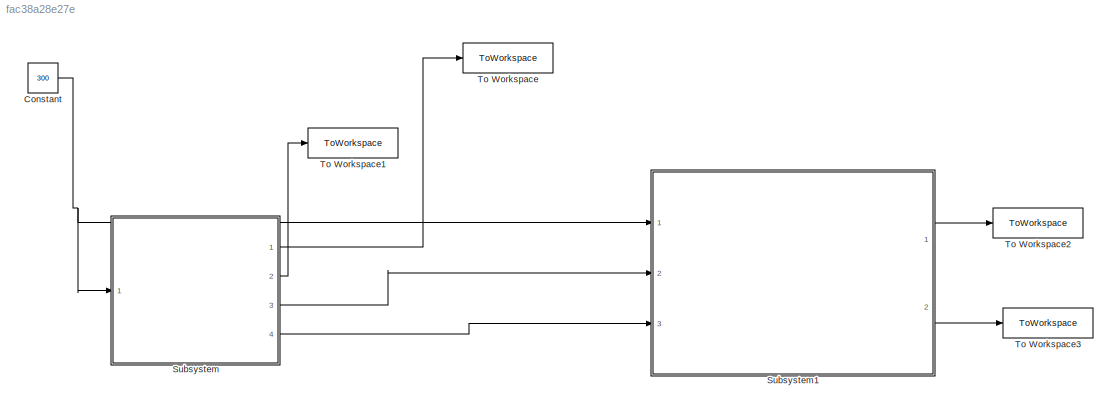
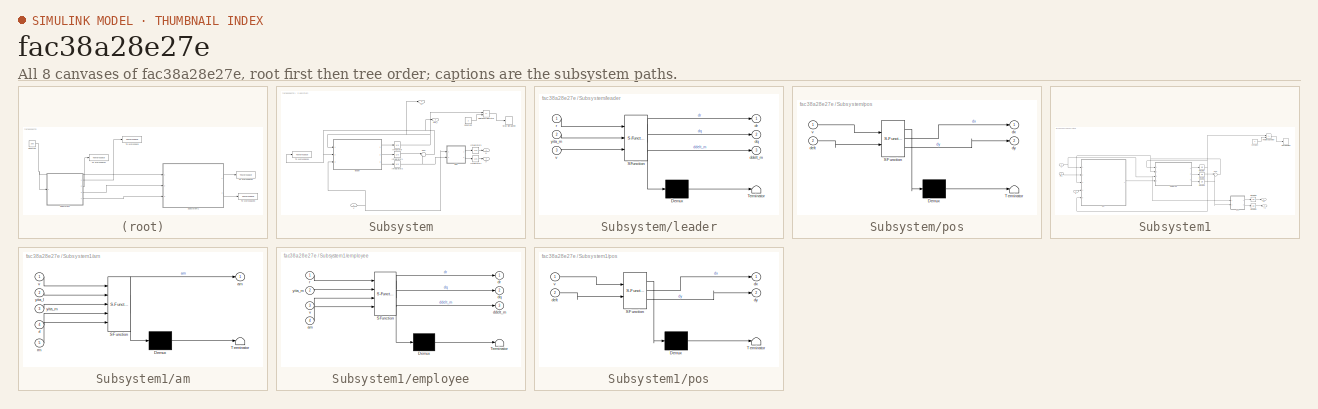
[diagram: thumbnail index - all 8 canvases of the model, root first then tree order]
MODEL slx_fac38a28e27e
KIND model
CONFIG AbsTol = auto
CONFIG EnableMultiTasking = off
CONFIG FixedStep = auto
CONFIG MaxStep = auto
CONFIG MinStep = auto
CONFIG RelTol = 1e-3
CONFIG SampleTimeConstraint = Unconstrained
CONFIG SolverName = VariableStepAuto
CONFIG StartTime = 0.0
CONFIG StopTime = 40
BLOCK [Constant] Constant
  Value = 300
BLOCK [SubSystem] Subsystem
  Ports = [1, 4]
  RequestExecContextInheritance = off
BLOCK [Constant] Subsystem/Constant
  Value = 2
BLOCK [Integrator] Subsystem/Integrator
  InitialCondition = sqrt(9093^2 + 5250^2)
  Ports = [1, 1]
BLOCK [Integrator] Subsystem/Integrator1
  InitialCondition = -30 / 180 * pi
  Ports = [1, 1]
BLOCK [Integrator] Subsystem/Integrator2
  InitialCondition = -40 * pi / 180
  Ports = [1, 1]
BLOCK [Integrator] Subsystem/Integrator3
  InitialCondition = -9093
  Ports = [1, 1]
BLOCK [Integrator] Subsystem/Integrator4
  InitialCondition = 5250
  Ports = [1, 1]
BLOCK [RelationalOperator] Subsystem/Relational Operator
  InputSameDT = off
  Operator = <=
  OutDataTypeStr = boolean
  Ports = [2, 1]
  RndMeth = Simplest
BLOCK [Stop] Subsystem/Stop Simulation
BLOCK [Sum] Subsystem/Sum
  Inputs = |+-
  Ports = [2, 1]
BLOCK [ToWorkspace] Subsystem/To Workspace1
  FixptAsFi = on
  MaxDataPoints = inf
  Ports = [1]
  SampleTime = -1
  SaveFormat = Timeseries
  VariableName = yita_l
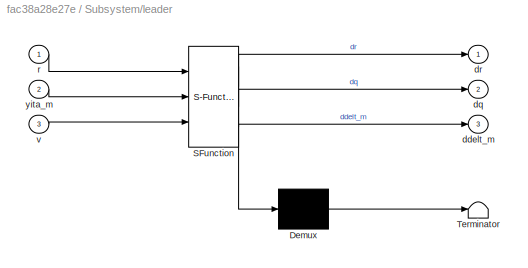
BLOCK [SubSystem] Subsystem/leader
  ErrorFcn = Stateflow.Translate.translate
  PermitHierarchicalResolution = ExplicitOnly
  Ports = [3, 3]
  RequestExecContextInheritance = off
  SFBlockType = MATLAB Function
  TreatAsAtomicUnit = on
BLOCK [Demux] Subsystem/leader/ Demux 
  Outputs = 1
  Ports = [1, 1]
BLOCK [S-Function] Subsystem/leader/ SFunction 
  EnableBusSupport = on
  FunctionName = sf_sfun
  PortCounts = [3 4]
  Ports = [3, 4]
  SFcnIsStateOwnerBlock = off
  SFunctionDeploymentMode = off
  Tag = Stateflow S-Function 2
BLOCK [Terminator] Subsystem/leader/ Terminator 
BLOCK [Outport] Subsystem/leader/ddelt_m
  Port = 3
BLOCK [Outport] Subsystem/leader/dq
  Port = 2
BLOCK [Outport] Subsystem/leader/dr
BLOCK [Inport] Subsystem/leader/r
BLOCK [Inport] Subsystem/leader/v
  Port = 3
BLOCK [Inport] Subsystem/leader/yita_m
  Port = 2
BLOCK [SubSystem] Subsystem/pos
  ErrorFcn = Stateflow.Translate.translate
  PermitHierarchicalResolution = ExplicitOnly
  Ports = [2, 2]
  RequestExecContextInheritance = off
  SFBlockType = MATLAB Function
  TreatAsAtomicUnit = on
BLOCK [Demux] Subsystem/pos/ Demux 
  Outputs = 1
  Ports = [1, 1]
BLOCK [S-Function] Subsystem/pos/ SFunction 
  EnableBusSupport = on
  FunctionName = sf_sfun
  PortCounts = [2 3]
  Ports = [2, 3]
  SFcnIsStateOwnerBlock = off
  SFunctionDeploymentMode = off
  Tag = Stateflow S-Function 1
BLOCK [Terminator] Subsystem/pos/ Terminator 
BLOCK [Inport] Subsystem/pos/delt
  Port = 2
BLOCK [Outport] Subsystem/pos/dx
BLOCK [Outport] Subsystem/pos/dy
  Port = 2
BLOCK [Inport] Subsystem/pos/v
BLOCK [Outport] Subsystem/rl
  Port = 4
BLOCK [Inport] Subsystem/v
BLOCK [Outport] Subsystem/xl
BLOCK [Outport] Subsystem/yita_l
  Port = 3
BLOCK [Outport] Subsystem/yl
  Port = 2
BLOCK [SubSystem] Subsystem1
  Ports = [3, 2]
  RequestExecContextInheritance = off
BLOCK [Constant] Subsystem1/Constant
  Value = 2
BLOCK [Integrator] Subsystem1/Integrator
  InitialCondition = sqrt(4750^2 + 8227^2)
  Ports = [1, 1]
BLOCK [Integrator] Subsystem1/Integrator1
  InitialCondition = 120 * pi / 180
  Ports = [1, 1]
BLOCK [Integrator] Subsystem1/Integrator2
  InitialCondition = 105 * pi / 180
  Ports = [1, 1]
BLOCK [Integrator] Subsystem1/Integrator3
  InitialCondition = 4750
  Ports = [1, 1]
BLOCK [Integrator] Subsystem1/Integrator4
  InitialCondition = -8227
  Ports = [1, 1]
BLOCK [RelationalOperator] Subsystem1/Relational Operator
  InputSameDT = off
  Operator = <=
  OutDataTypeStr = boolean
  Ports = [2, 1]
  RndMeth = Simplest
BLOCK [Stop] Subsystem1/Stop Simulation
BLOCK [Sum] Subsystem1/Sum
  Inputs = |+-
  Ports = [2, 1]
BLOCK [SubSystem] Subsystem1/am
  ErrorFcn = Stateflow.Translate.translate
  PermitHierarchicalResolution = ExplicitOnly
  Ports = [5, 1]
  RequestExecContextInheritance = off
  SFBlockType = MATLAB Function
  TreatAsAtomicUnit = on
BLOCK [Demux] Subsystem1/am/ Demux 
  Outputs = 1
  Ports = [1, 1]
BLOCK [S-Function] Subsystem1/am/ SFunction 
  EnableBusSupport = on
  FunctionName = sf_sfun
  PortCounts = [5 2]
  Ports = [5, 2]
  SFcnIsStateOwnerBlock = off
  SFunctionDeploymentMode = off
  Tag = Stateflow S-Function 4
BLOCK [Terminator] Subsystem1/am/ Terminator 
BLOCK [Outport] Subsystem1/am/am
BLOCK [Inport] Subsystem1/am/rl
  Port = 4
BLOCK [Inport] Subsystem1/am/rm
  Port = 5
BLOCK [Inport] Subsystem1/am/v
BLOCK [Inport] Subsystem1/am/yita_l
  Port = 2
BLOCK [Inport] Subsystem1/am/yita_m
  Port = 3
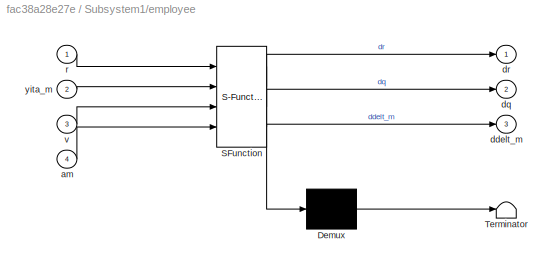
BLOCK [SubSystem] Subsystem1/employee
  ErrorFcn = Stateflow.Translate.translate
  PermitHierarchicalResolution = ExplicitOnly
  Ports = [4, 3]
  RequestExecContextInheritance = off
  SFBlockType = MATLAB Function
  TreatAsAtomicUnit = on
BLOCK [Demux] Subsystem1/employee/ Demux 
  Outputs = 1
  Ports = [1, 1]
BLOCK [S-Function] Subsystem1/employee/ SFunction 
  EnableBusSupport = on
  FunctionName = sf_sfun
  PortCounts = [4 4]
  Ports = [4, 4]
  SFcnIsStateOwnerBlock = off
  SFunctionDeploymentMode = off
  Tag = Stateflow S-Function 3
BLOCK [Terminator] Subsystem1/employee/ Terminator 
BLOCK [Inport] Subsystem1/employee/am
  Port = 4
BLOCK [Outport] Subsystem1/employee/ddelt_m
  Port = 3
BLOCK [Outport] Subsystem1/employee/dq
  Port = 2
BLOCK [Outport] Subsystem1/employee/dr
BLOCK [Inport] Subsystem1/employee/r
BLOCK [Inport] Subsystem1/employee/v
  Port = 3
BLOCK [Inport] Subsystem1/employee/yita_m
  Port = 2
BLOCK [SubSystem] Subsystem1/pos
  ErrorFcn = Stateflow.Translate.translate
  PermitHierarchicalResolution = ExplicitOnly
  Ports = [2, 2]
  RequestExecContextInheritance = off
  SFBlockType = MATLAB Function
  TreatAsAtomicUnit = on
BLOCK [Demux] Subsystem1/pos/ Demux 
  Outputs = 1
  Ports = [1, 1]
BLOCK [S-Function] Subsystem1/pos/ SFunction 
  EnableBusSupport = on
  FunctionName = sf_sfun
  PortCounts = [2 3]
  Ports = [2, 3]
  SFcnIsStateOwnerBlock = off
  SFunctionDeploymentMode = off
  Tag = Stateflow S-Function 5
BLOCK [Terminator] Subsystem1/pos/ Terminator 
BLOCK [Inport] Subsystem1/pos/delt
  Port = 2
BLOCK [Outport] Subsystem1/pos/dx
BLOCK [Outport] Subsystem1/pos/dy
  Port = 2
BLOCK [Inport] Subsystem1/pos/v
BLOCK [Inport] Subsystem1/rl
  Port = 3
BLOCK [Inport] Subsystem1/v
BLOCK [Outport] Subsystem1/x1
BLOCK [Outport] Subsystem1/y1
  Port = 2
BLOCK [Inport] Subsystem1/yita_l
  Port = 2
BLOCK [ToWorkspace] To Workspace
  FixptAsFi = on
  MaxDataPoints = inf
  Ports = [1]
  SampleTime = -1
  SaveFormat = Timeseries
  VariableName = xl
BLOCK [ToWorkspace] To Workspace1
  FixptAsFi = on
  MaxDataPoints = inf
  Ports = [1]
  SampleTime = -1
  SaveFormat = Timeseries
  VariableName = yl
BLOCK [ToWorkspace] To Workspace2
  FixptAsFi = on
  MaxDataPoints = inf
  Ports = [1]
  SampleTime = -1
  SaveFormat = Timeseries
  VariableName = x1
BLOCK [ToWorkspace] To Workspace3
  FixptAsFi = on
  MaxDataPoints = inf
  Ports = [1]
  SampleTime = -1
  SaveFormat = Timeseries
  VariableName = y1
NET Constant:1 -> Subsystem1:1, Subsystem:1
LINE Subsystem/Constant:1 -> Subsystem/Relational Operator:2
LINE Subsystem/Integrator1:1 -> Subsystem/Sum:1
NET Subsystem/Integrator2:1 -> Subsystem/Sum:2, Subsystem/pos:2
LINE Subsystem/Integrator3:1 -> Subsystem/xl:1
LINE Subsystem/Integrator4:1 -> Subsystem/yl:1
NET Subsystem/Integrator:1 -> Subsystem/Relational Operator:1, Subsystem/leader:1, Subsystem/rl:1
LINE Subsystem/Relational Operator:1 -> Subsystem/Stop Simulation:1
NET Subsystem/Sum:1 -> Subsystem/To Workspace1:1, Subsystem/leader:2, Subsystem/yita_l:1
LINE Subsystem/leader:1 -> Subsystem/Integrator:1
LINE Subsystem/leader:2 -> Subsystem/Integrator1:1
LINE Subsystem/leader:3 -> Subsystem/Integrator2:1
LINE Subsystem/pos:1 -> Subsystem/Integrator3:1
LINE Subsystem/pos:2 -> Subsystem/Integrator4:1
NET Subsystem/v:1 -> Subsystem/leader:3, Subsystem/pos:1
LINE Subsystem1/Constant:1 -> Subsystem1/Relational Operator:2
LINE Subsystem1/Integrator1:1 -> Subsystem1/Sum:1
NET Subsystem1/Integrator2:1 -> Subsystem1/Sum:2, Subsystem1/pos:2
LINE Subsystem1/Integrator3:1 -> Subsystem1/x1:1
LINE Subsystem1/Integrator4:1 -> Subsystem1/y1:1
NET Subsystem1/Integrator:1 -> Subsystem1/Relational Operator:1, Subsystem1/am:5, Subsystem1/employee:1
LINE Subsystem1/Relational Operator:1 -> Subsystem1/Stop Simulation:1
NET Subsystem1/Sum:1 -> Subsystem1/am:3, Subsystem1/employee:2
LINE Subsystem1/am:1 -> Subsystem1/employee:4
LINE Subsystem1/employee:1 -> Subsystem1/Integrator:1
LINE Subsystem1/employee:2 -> Subsystem1/Integrator1:1
LINE Subsystem1/employee:3 -> Subsystem1/Integrator2:1
LINE Subsystem1/pos:1 -> Subsystem1/Integrator3:1
LINE Subsystem1/pos:2 -> Subsystem1/Integrator4:1
LINE Subsystem1/rl:1 -> Subsystem1/am:4
NET Subsystem1/v:1 -> Subsystem1/am:1, Subsystem1/employee:3, Subsystem1/pos:1
LINE Subsystem1/yita_l:1 -> Subsystem1/am:2
LINE Subsystem1:1 -> To Workspace2:1
LINE Subsystem1:2 -> To Workspace3:1
LINE Subsystem:1 -> To Workspace:1
LINE Subsystem:2 -> To Workspace1:1
LINE Subsystem:3 -> Subsystem1:2
LINE Subsystem:4 -> Subsystem1:3
note: NET lines group one-source signal fan-out (src -> all destinations, sorted); 1:1 wires keep LINE
CHART Subsystem/pos states=1 transitions=1
  STATE_LABEL 'eML_blk_kernel()'
  STATE_LABEL 'SCRIPT:\nfunction [dx,dy] = fcn(v,delt)\n\ndx = v * cos(delt);\n\ndy = v * sin(delt);\n'
CHART Subsystem/leader states=1 transitions=1
  STATE_LABEL 'eML_blk_kernel()'
  STATE_LABEL 'SCRIPT:\nfunction [dr,dq,ddelt_m] = fcn(r,yita_m,v)\n\n\nn = 3;\n\n\ndr = -v * cos(yita_m);\n\ndq = (v * sin(yita_m))/r;\n\n\nddelt_m = n * dq ;\n\n'
CHART Subsystem1/employee states=1 transitions=1
  STATE_LABEL 'eML_blk_kernel()'
  STATE_LABEL 'SCRIPT:\nfunction [dr,dq,ddelt_m] = fcn(r,yita_m,v,am)\n\n\nn = 3;\n\ndr = -v * cos(yita_m);\n\ndq = (v * sin(yita_m))/r;\n\n\nddelt_m = n * dq + am/v ;\n\n'
CHART Subsystem1/am states=1 transitions=1
  STATE_LABEL 'eML_blk_kernel()'
  STATE_LABEL 'SCRIPT:\nfunction am  = fcn(v,yita_l,yita_m,rl,rm)\n\nn = 3;\n\n\ne_yita = yita_l - yita_m;\n\ne_r = rl - rm;\n\nc1 = 0.7;\nc2 = 0.9;\n\n\nkr = c1 / (c2 + (e_r/v));\n\nk_yita = 5;\n\n\n\n\n\n\ntmp_t1 = sin(yita_l - e_yita) / (rl - e_r);\n\n\ntt = cos(yita_l) - kr * e_r / v ;\n\nif(abs(tt) > 1)\ndisp(tt);\ndisp(yita_l);\ndisp(e_r);\ndisp(kr);\ndisp(rl);\nend\n\ntmp_t2 = (sin(yita_l))^2 / ( rl * sqrt( 1 - (cos(yita_l) - kr * e_r / v)^...<+211ch>'
CHART Subsystem1/pos states=1 transitions=1
  STATE_LABEL 'eML_blk_kernel()'
  STATE_LABEL 'SCRIPT:\nfunction [dx,dy] = fcn(v,delt)\n\ndx = v * cos(delt);\n\ndy = v * sin(delt);\n'
CHART  states=0 transitions=0
CHART  states=0 transitions=0
CHART  states=0 transitions=0
CHART  states=0 transitions=0
CHART  states=0 transitions=0
